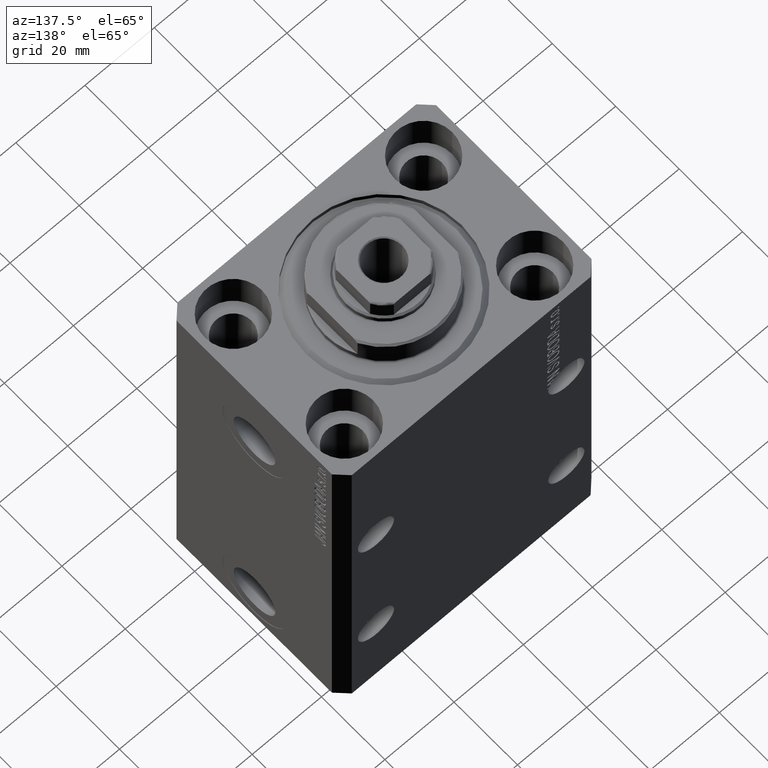
[diagram: clean part render]
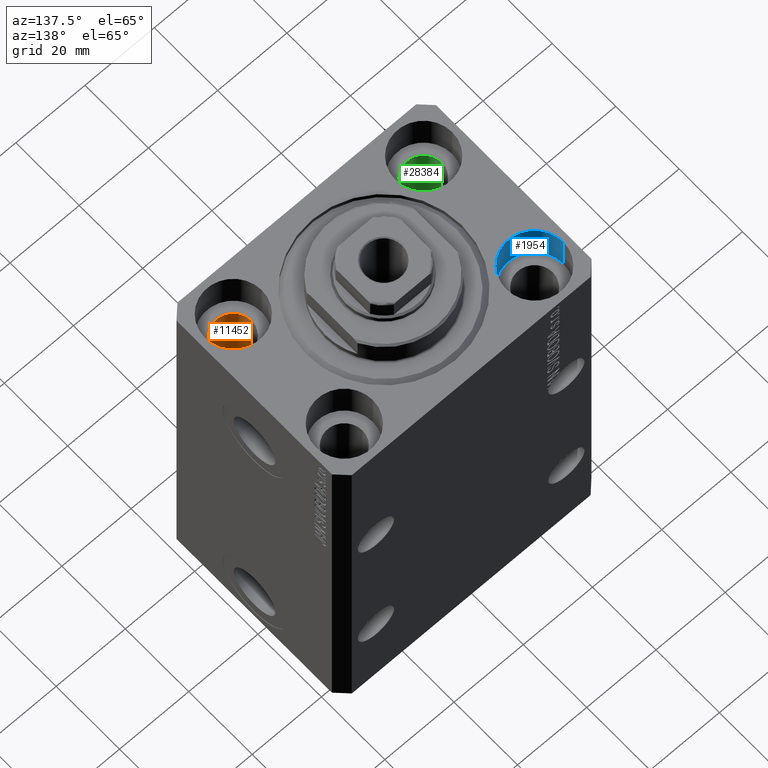
[diagram: same view with three faces highlighted in distinct colors, each labeled with its STEP entity id]
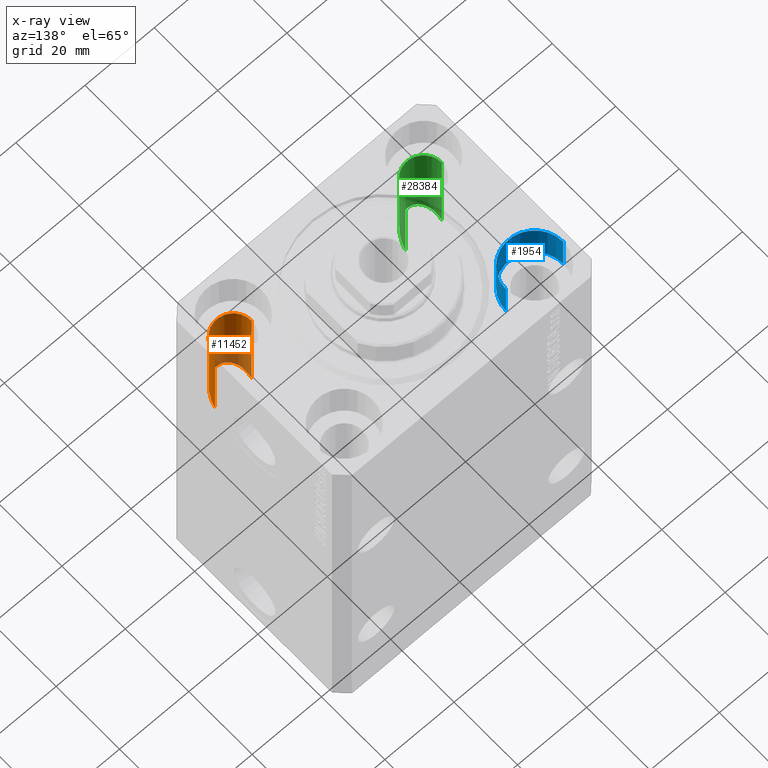
[diagram: x-ray of the same camera — body ghosted, the three highlighted faces saturated]
A machine part, auxiliary view with three faces highlighted in distinct colors.
The next image is the same camera in x-ray (body ghosted, the three faces saturated) — at least one of them is partly hidden behind the body in this view.
Their STEP definitions:

[orange] entity #11452 — the highlighted cylindrical surface (edge-blend (fillet) strip) has radius 5.25 mm, axis along (0, 0, 1).
#264 = AXIS2_PLACEMENT_3D ( 'NONE', #11995, #1263, #15184 ) ;
#496 = LINE ( 'NONE', #21706, #8433 ) ;
#1228 = ORIENTED_EDGE ( 'NONE', *, *, #13350, .T. ) ;
#1263 = DIRECTION ( 'NONE',  ( -0.000000000000000000, -0.000000000000000000, 1.000000000000000000 ) ) ;
#1481 = CYLINDRICAL_SURFACE ( 'NONE', #264, 5.249999999999997335 ) ;
#3062 = VECTOR ( 'NONE', #35334, 1000.000000000000000 ) ;
#4744 = CARTESIAN_POINT ( 'NONE',  ( 22.25000000000000711, -17.50000000000000000, -110.0000000000000000 ) ) ;
#4971 = ORIENTED_EDGE ( 'NONE', *, *, #16175, .F. ) ;
#8433 = VECTOR ( 'NONE', #14191, 1000.000000000000000 ) ;
#8456 = VERTEX_POINT ( 'NONE', #25533 ) ;
#11452 = ADVANCED_FACE ( 'NONE', ( #32742 ), #1481, .F. ) ;
#11995 = CARTESIAN_POINT ( 'NONE',  ( 27.50000000000000355, -17.50000000000000000, -110.0000000000000000 ) ) ;
#12212 = VERTEX_POINT ( 'NONE', #38327 ) ;
#12725 = AXIS2_PLACEMENT_3D ( 'NONE', #39218, #32128, #28945 ) ;
#13350 = EDGE_CURVE ( 'NONE', #21730, #8456, #31650, .T. ) ;
#14191 = DIRECTION ( 'NONE',  ( -0.000000000000000000, -0.000000000000000000, 1.000000000000000000 ) ) ;
#14260 = ORIENTED_EDGE ( 'NONE', *, *, #35453, .T. ) ;
#15184 = DIRECTION ( 'NONE',  ( 1.000000000000000000, 0.000000000000000000, 0.000000000000000000 ) ) ;
#16175 = EDGE_CURVE ( 'NONE', #28455, #8456, #496, .T. ) ;
#17035 = CARTESIAN_POINT ( 'NONE',  ( 22.25000000000000711, -17.50000000000000000, -11.00000000000000000 ) ) ;
#21706 = CARTESIAN_POINT ( 'NONE',  ( 32.75000000000000000, -17.50000000000000000, -110.0000000000000000 ) ) ;
#21730 = VERTEX_POINT ( 'NONE', #17035 ) ;
#21860 = CARTESIAN_POINT ( 'NONE',  ( 32.74999999999999289, -27.99999999999998934, -29.50000000000001066 ) ) ;
#22079 = LINE ( 'NONE', #4744, #3062 ) ;
#22935 = CARTESIAN_POINT ( 'NONE',  ( 32.75000000000000000, -17.50000000000000000, -39.99999999999999289 ) ) ;
#23154 = EDGE_LOOP ( 'NONE', ( #14260, #40920, #1228, #4971 ) ) ;
#25533 = CARTESIAN_POINT ( 'NONE',  ( 32.75000000000000000, -17.50000000000000000, -11.00000000000000000 ) ) ;
#28041 = CARTESIAN_POINT ( 'NONE',  ( 32.75000000000000000, -17.50000000000000000, -39.99999999999999289 ) ) ;
#28455 = VERTEX_POINT ( 'NONE', #22935 ) ;
#28945 = DIRECTION ( 'NONE',  ( 1.000000000000000000, 0.000000000000000000, 0.000000000000000000 ) ) ;
#31464 = CARTESIAN_POINT ( 'NONE',  ( 22.25000000000001066, -17.50000000000000000, -39.99999999999999289 ) ) ;
#31650 = CIRCLE ( 'NONE', #12725, 5.249999999999997335 ) ;
#32128 = DIRECTION ( 'NONE',  ( 0.000000000000000000, 0.000000000000000000, 1.000000000000000000 ) ) ;
#32742 = FACE_OUTER_BOUND ( 'NONE', #23154, .T. ) ;
#34140 = EDGE_CURVE ( 'NONE', #12212, #21730, #22079, .T. ) ;
#35334 = DIRECTION ( 'NONE',  ( -0.000000000000000000, -0.000000000000000000, 1.000000000000000000 ) ) ;
#35453 = EDGE_CURVE ( 'NONE', #28455, #12212, #38302, .T. ) ;
#35573 = CARTESIAN_POINT ( 'NONE',  ( 22.25000000000001421, -27.99999999999998934, -29.50000000000001066 ) ) ;
#38302 =( BOUNDED_CURVE ( )  B_SPLINE_CURVE ( 3, ( #28041, #21860, #35573, #31464 ),
 .UNSPECIFIED., .F., .F. ) 
 B_SPLINE_CURVE_WITH_KNOTS ( ( 4, 4 ),
 ( 4.712388980384689674, 7.853981633974482790 ),
 .UNSPECIFIED. ) 
 CURVE ( )  GEOMETRIC_REPRESENTATION_ITEM ( )  RATIONAL_B_SPLINE_CURVE ( ( 1.000000000000000000, 0.3333333333333333703, 0.3333333333333333703, 1.000000000000000000 ) ) 
 REPRESENTATION_ITEM ( '' )  );
#38327 = CARTESIAN_POINT ( 'NONE',  ( 22.25000000000001066, -17.50000000000000000, -39.99999999999999289 ) ) ;
#39218 = CARTESIAN_POINT ( 'NONE',  ( 27.50000000000000355, -17.50000000000000000, -11.00000000000000000 ) ) ;
#40920 = ORIENTED_EDGE ( 'NONE', *, *, #34140, .T. ) ;

[blue] entity #1954 — the highlighted cylindrical surface (partial cylindrical patch) has radius 8.25 mm, axis along (0, 0, 1).
#1954 = ADVANCED_FACE ( 'NONE', ( #13755 ), #40900, .F. ) ;
#3783 = AXIS2_PLACEMENT_3D ( 'NONE', #18439, #42865, #39210 ) ;
#7396 = CARTESIAN_POINT ( 'NONE',  ( -35.75000000000000711, 17.50000000000000000, -11.00000000000000000 ) ) ;
#7994 = CARTESIAN_POINT ( 'NONE',  ( -35.75000000000000711, 17.50000000000000000, 0.000000000000000000 ) ) ;
#8858 = LINE ( 'NONE', #22775, #24078 ) ;
#10466 = VERTEX_POINT ( 'NONE', #11023 ) ;
#11023 = CARTESIAN_POINT ( 'NONE',  ( -19.25000000000000355, 17.50000000000000000, -11.00000000000000000 ) ) ;
#11261 = VECTOR ( 'NONE', #17556, 1000.000000000000000 ) ;
#12850 = CARTESIAN_POINT ( 'NONE',  ( -27.50000000000000355, 17.50000000000000000, -11.00000000000000000 ) ) ;
#12852 = DIRECTION ( 'NONE',  ( 0.000000000000000000, 0.000000000000000000, 1.000000000000000000 ) ) ;
#13699 = LINE ( 'NONE', #34689, #11261 ) ;
#13755 = FACE_OUTER_BOUND ( 'NONE', #17513, .T. ) ;
#13915 = ORIENTED_EDGE ( 'NONE', *, *, #29207, .T. ) ;
#13974 = CIRCLE ( 'NONE', #27813, 8.250000000000000000 ) ;
#17513 = EDGE_LOOP ( 'NONE', ( #43219, #13915, #44488, #28174 ) ) ;
#17556 = DIRECTION ( 'NONE',  ( -0.000000000000000000, -0.000000000000000000, 1.000000000000000000 ) ) ;
#18439 = CARTESIAN_POINT ( 'NONE',  ( -27.50000000000000355, 17.50000000000000000, 0.000000000000000000 ) ) ;
#19347 = CARTESIAN_POINT ( 'NONE',  ( -19.25000000000000355, 17.50000000000000000, 0.000000000000000000 ) ) ;
#19791 = CIRCLE ( 'NONE', #3783, 8.250000000000000000 ) ;
#21979 = VERTEX_POINT ( 'NONE', #7396 ) ;
#22775 = CARTESIAN_POINT ( 'NONE',  ( -35.75000000000000711, 17.50000000000000000, -11.00000000000000000 ) ) ;
#24078 = VECTOR ( 'NONE', #36699, 1000.000000000000000 ) ;
#24172 = AXIS2_PLACEMENT_3D ( 'NONE', #12850, #24258, #38174 ) ;
#24258 = DIRECTION ( 'NONE',  ( -0.000000000000000000, -0.000000000000000000, 1.000000000000000000 ) ) ;
#26687 = VERTEX_POINT ( 'NONE', #7994 ) ;
#26765 = DIRECTION ( 'NONE',  ( 1.000000000000000000, 0.000000000000000000, 0.000000000000000000 ) ) ;
#27813 = AXIS2_PLACEMENT_3D ( 'NONE', #33826, #12852, #26765 ) ;
#28174 = ORIENTED_EDGE ( 'NONE', *, *, #44509, .F. ) ;
#29207 = EDGE_CURVE ( 'NONE', #21979, #26687, #8858, .T. ) ;
#29222 = VERTEX_POINT ( 'NONE', #19347 ) ;
#33826 = CARTESIAN_POINT ( 'NONE',  ( -27.50000000000000355, 17.50000000000000000, -11.00000000000000000 ) ) ;
#34689 = CARTESIAN_POINT ( 'NONE',  ( -19.25000000000000355, 17.50000000000000000, -11.00000000000000000 ) ) ;
#36699 = DIRECTION ( 'NONE',  ( -0.000000000000000000, -0.000000000000000000, 1.000000000000000000 ) ) ;
#37289 = EDGE_CURVE ( 'NONE', #21979, #10466, #13974, .T. ) ;
#38130 = EDGE_CURVE ( 'NONE', #26687, #29222, #19791, .T. ) ;
#38174 = DIRECTION ( 'NONE',  ( 1.000000000000000000, 0.000000000000000000, 0.000000000000000000 ) ) ;
#39210 = DIRECTION ( 'NONE',  ( 1.000000000000000000, 0.000000000000000000, 0.000000000000000000 ) ) ;
#40900 = CYLINDRICAL_SURFACE ( 'NONE', #24172, 8.250000000000000000 ) ;
#42865 = DIRECTION ( 'NONE',  ( 0.000000000000000000, 0.000000000000000000, 1.000000000000000000 ) ) ;
#43219 = ORIENTED_EDGE ( 'NONE', *, *, #37289, .F. ) ;
#44488 = ORIENTED_EDGE ( 'NONE', *, *, #38130, .T. ) ;
#44509 = EDGE_CURVE ( 'NONE', #10466, #29222, #13699, .T. ) ;

[green] entity #28384 — the highlighted cylindrical surface (edge-blend (fillet) strip) has radius 5.25 mm, axis along (0, 0, 1).
#1180 = CARTESIAN_POINT ( 'NONE',  ( -27.50000000000000355, -17.50000000000000000, -11.00000000000000000 ) ) ;
#1613 = ORIENTED_EDGE ( 'NONE', *, *, #35898, .T. ) ;
#1764 = ORIENTED_EDGE ( 'NONE', *, *, #21685, .F. ) ;
#3116 = AXIS2_PLACEMENT_3D ( 'NONE', #1180, #21724, #11007 ) ;
#3367 = CARTESIAN_POINT ( 'NONE',  ( -22.25000000000000000, -17.50000000000000000, -40.00000000000000711 ) ) ;
#7020 = CARTESIAN_POINT ( 'NONE',  ( -22.24999999999999645, -28.00000000000000000, -29.50000000000001066 ) ) ;
#7638 = CARTESIAN_POINT ( 'NONE',  ( -32.75000000000000000, -17.50000000000000000, -11.00000000000000000 ) ) ;
#7673 = DIRECTION ( 'NONE',  ( -0.000000000000000000, -0.000000000000000000, 1.000000000000000000 ) ) ;
#7708 = VERTEX_POINT ( 'NONE', #29354 ) ;
#8772 = EDGE_CURVE ( 'NONE', #14841, #7708, #25686, .T. ) ;
#10214 = CARTESIAN_POINT ( 'NONE',  ( -32.74999999999999289, -28.00000000000000000, -29.50000000000001066 ) ) ;
#11007 = DIRECTION ( 'NONE',  ( 1.000000000000000000, 0.000000000000000000, 0.000000000000000000 ) ) ;
#11902 = CARTESIAN_POINT ( 'NONE',  ( -32.74999999999999289, -17.50000000000000000, -40.00000000000000711 ) ) ;
#12721 = DIRECTION ( 'NONE',  ( -0.000000000000000000, -0.000000000000000000, 1.000000000000000000 ) ) ;
#12898 = CARTESIAN_POINT ( 'NONE',  ( -32.75000000000000000, -17.50000000000000000, -110.0000000000000000 ) ) ;
#14841 = VERTEX_POINT ( 'NONE', #7638 ) ;
#15054 = ORIENTED_EDGE ( 'NONE', *, *, #16415, .T. ) ;
#16054 = VERTEX_POINT ( 'NONE', #21947 ) ;
#16123 = LINE ( 'NONE', #43995, #40539 ) ;
#16415 = EDGE_CURVE ( 'NONE', #16054, #24578, #30417, .T. ) ;
#21587 = DIRECTION ( 'NONE',  ( 1.000000000000000000, 0.000000000000000000, 0.000000000000000000 ) ) ;
#21685 = EDGE_CURVE ( 'NONE', #16054, #7708, #16123, .T. ) ;
#21724 = DIRECTION ( 'NONE',  ( 0.000000000000000000, 0.000000000000000000, 1.000000000000000000 ) ) ;
#21947 = CARTESIAN_POINT ( 'NONE',  ( -22.25000000000000000, -17.50000000000000000, -40.00000000000000711 ) ) ;
#23608 = DIRECTION ( 'NONE',  ( -0.000000000000000000, -0.000000000000000000, 1.000000000000000000 ) ) ;
#24578 = VERTEX_POINT ( 'NONE', #11902 ) ;
#24785 = CYLINDRICAL_SURFACE ( 'NONE', #25471, 5.250000000000000888 ) ;
#25015 = FACE_OUTER_BOUND ( 'NONE', #42285, .T. ) ;
#25471 = AXIS2_PLACEMENT_3D ( 'NONE', #38937, #7673, #21587 ) ;
#25686 = CIRCLE ( 'NONE', #3116, 5.250000000000000888 ) ;
#28384 = ADVANCED_FACE ( 'NONE', ( #25015 ), #24785, .F. ) ;
#29354 = CARTESIAN_POINT ( 'NONE',  ( -22.25000000000000355, -17.50000000000000000, -11.00000000000000000 ) ) ;
#30044 = VECTOR ( 'NONE', #23608, 1000.000000000000000 ) ;
#30215 = LINE ( 'NONE', #12898, #30044 ) ;
#30417 =( BOUNDED_CURVE ( )  B_SPLINE_CURVE ( 3, ( #3367, #7020, #10214, #31191 ),
 .UNSPECIFIED., .F., .F. ) 
 B_SPLINE_CURVE_WITH_KNOTS ( ( 4, 4 ),
 ( 4.712388980384689674, 7.853981633974482790 ),
 .UNSPECIFIED. ) 
 CURVE ( )  GEOMETRIC_REPRESENTATION_ITEM ( )  RATIONAL_B_SPLINE_CURVE ( ( 1.000000000000000000, 0.3333333333333333703, 0.3333333333333333703, 1.000000000000000000 ) ) 
 REPRESENTATION_ITEM ( '' )  );
#31191 = CARTESIAN_POINT ( 'NONE',  ( -32.74999999999999289, -17.50000000000000000, -40.00000000000000711 ) ) ;
#35898 = EDGE_CURVE ( 'NONE', #24578, #14841, #30215, .T. ) ;
#36526 = ORIENTED_EDGE ( 'NONE', *, *, #8772, .T. ) ;
#38937 = CARTESIAN_POINT ( 'NONE',  ( -27.50000000000000355, -17.50000000000000000, -110.0000000000000000 ) ) ;
#40539 = VECTOR ( 'NONE', #12721, 1000.000000000000000 ) ;
#42285 = EDGE_LOOP ( 'NONE', ( #15054, #1613, #36526, #1764 ) ) ;
#43995 = CARTESIAN_POINT ( 'NONE',  ( -22.25000000000000355, -17.50000000000000000, -110.0000000000000000 ) ) ;